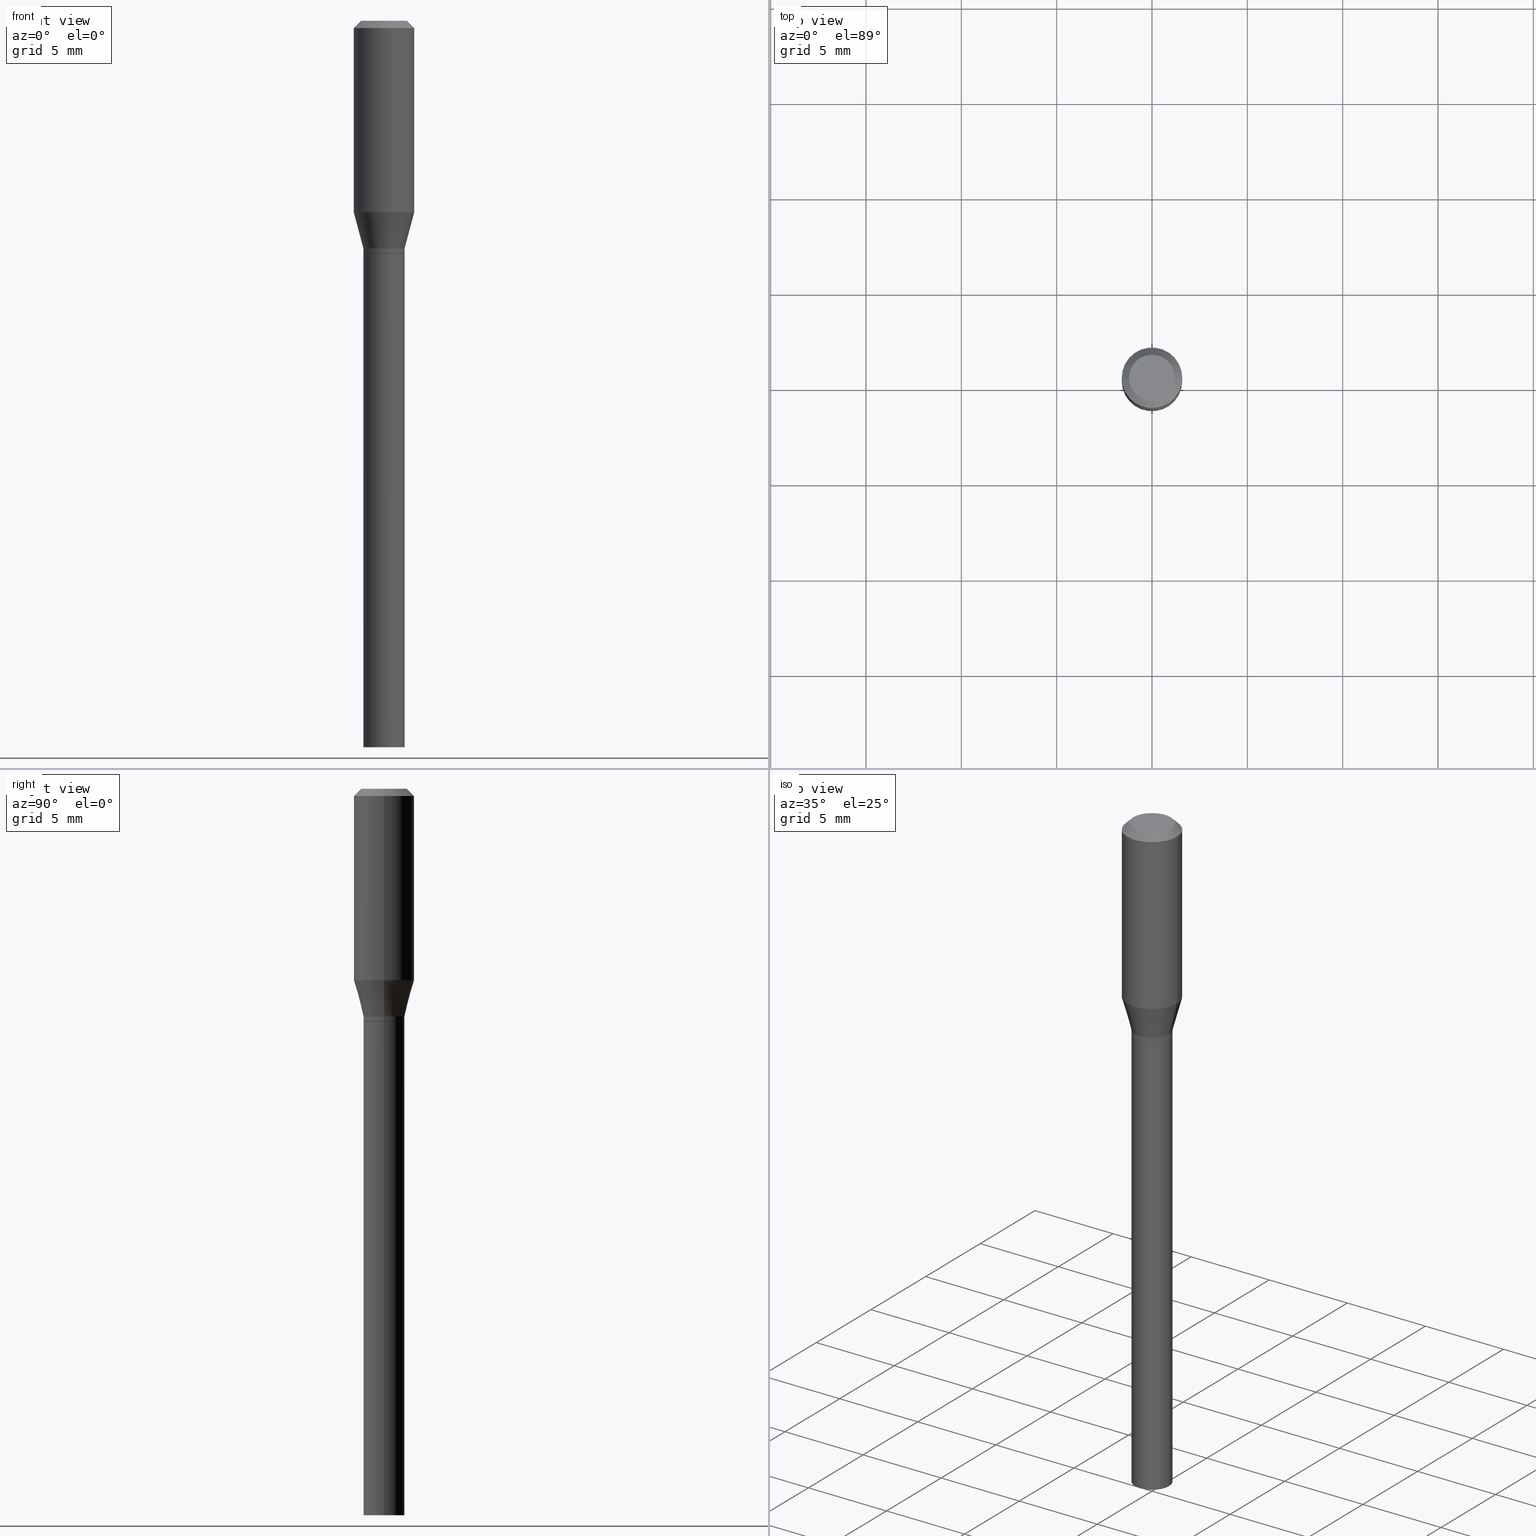
[diagram: canonical four-view strip — front | top / right | iso, engineering-drawing reading convention]
A machine part, canonical four-view strip (front | top / right | iso — engineering-drawing reading convention). The complete STEP part file that produces these views, byte-faithful:
ISO-10303-21;
HEADER;
FILE_DESCRIPTION (( 'STEP AP203' ),
    '1' );
FILE_NAME ('02712.STEP',
    '2024-03-18T21:35:12',
    ( '' ),
    ( '' ),
    'SwSTEP 2.0',
    'SolidWorks 2023',
    '' );
FILE_SCHEMA (( 'CONFIG_CONTROL_DESIGN' ));
ENDSEC;

DATA;
#1 = CONICAL_SURFACE ( 'NONE', #343, 0.04199999999999999567, 0.7853981633976103716 ) ;
#2 = DIRECTION ( 'NONE',  ( 1.000000000000000000, -6.982962677686265133E-15, 0.000000000000000000 ) ) ;
#3 = VERTEX_POINT ( 'NONE', #337 ) ;
#4 = DIRECTION ( 'NONE',  ( 1.000000000000000000, -6.982962677686269077E-15, 0.000000000000000000 ) ) ;
#5 = PRODUCT_RELATED_PRODUCT_CATEGORY ( 'detail', '', ( #98 ) ) ;
#6 = CARTESIAN_POINT ( 'NONE',  ( 0.000000000000000000, 0.000000000000000000, 0.000000000000000000 ) ) ;
#7 = EDGE_CURVE ( 'NONE', #368, #262, #136, .T. ) ;
#8 = CARTESIAN_POINT ( 'NONE',  ( 0.06250000000000000000, -4.888073874380388472E-16, -0.01499999999999999944 ) ) ;
#9 = EDGE_CURVE ( 'NONE', #330, #368, #223, .T. ) ;
#10 = VECTOR ( 'NONE', #112, 39.37007874015748854 ) ;
#11 = EDGE_LOOP ( 'NONE', ( #291, #358 ) ) ;
#12 = ORIENTED_EDGE ( 'NONE', *, *, #20, .F. ) ;
#13 = ORIENTED_EDGE ( 'NONE', *, *, #421, .F. ) ;
#14 = CONICAL_SURFACE ( 'NONE', #439, 0.04199999999999999567, 0.7853981633976103716 ) ;
#15 = DIRECTION ( 'NONE',  ( 1.000000000000000000, -6.982962677686265133E-15, 0.000000000000000000 ) ) ;
#16 = LOCAL_TIME ( 17, 35, 12.00000000000000000, #163 ) ;
#17 = PLANE ( 'NONE',  #351 ) ;
#18 = ADVANCED_FACE ( 'NONE', ( #445 ), #342, .T. ) ;
#19 = DIRECTION ( 'NONE',  ( 1.000000000000000000, -6.982962677686265922E-15, 4.876176775795935793E-29 ) ) ;
#20 = EDGE_CURVE ( 'NONE', #394, #330, #271, .T. ) ;
#21 = DATE_AND_TIME ( #167, #440 ) ;
#22 = FACE_OUTER_BOUND ( 'NONE', #48, .T. ) ;
#23 = AXIS2_PLACEMENT_3D ( 'NONE', #67, #463, #28 ) ;
#24 = COORDINATED_UNIVERSAL_TIME_OFFSET ( 5, 0, .BEHIND. ) ;
#25 = DIRECTION ( 'NONE',  ( -0.7071067811865452413, 2.468850131082233000E-15, -0.7071067811865497932 ) ) ;
#26 = DIRECTION ( 'NONE',  ( -2.445468806185136597E-29, 3.491481338843145583E-15, 1.000000000000000000 ) ) ;
#27 = APPROVAL_ROLE ( '' ) ;
#28 = DIRECTION ( 'NONE',  ( 1.000000000000000000, -6.982962677686267499E-15, 4.884662768193073002E-29 ) ) ;
#29 = ORIENTED_EDGE ( 'NONE', *, *, #307, .F. ) ;
#30 = AXIS2_PLACEMENT_3D ( 'NONE', #187, #377, #255 ) ;
#31 = APPROVAL_PERSON_ORGANIZATION ( #161, #378, #241 ) ;
#32 = DIRECTION ( 'NONE',  ( -2.445468806185136597E-29, 3.491481338843145583E-15, 1.000000000000000000 ) ) ;
#33 = ORIENTED_EDGE ( 'NONE', *, *, #385, .T. ) ;
#34 = EDGE_CURVE ( 'NONE', #182, #79, #88, .T. ) ;
#35 = DIRECTION ( 'NONE',  ( 1.000000000000000000, -6.982962677686267499E-15, 4.876176775795935793E-29 ) ) ;
#36 = ORIENTED_EDGE ( 'NONE', *, *, #7, .T. ) ;
#37 = CARTESIAN_POINT ( 'NONE',  ( 0.000000000000000000, 0.000000000000000000, 0.000000000000000000 ) ) ;
#38 = ORIENTED_EDGE ( 'NONE', *, *, #56, .T. ) ;
#39 = CIRCLE ( 'NONE', #86, 0.04250000000000005856 ) ;
#40 = CARTESIAN_POINT ( 'NONE',  ( -0.04249999999999999611, 3.019806626980425514E-16, -2.090547413358334859E-30 ) ) ;
#41 = ORIENTED_EDGE ( 'NONE', *, *, #336, .F. ) ;
#42 = DIRECTION ( 'NONE',  ( -2.445468806185136597E-29, 3.491481338843145583E-15, 1.000000000000000000 ) ) ;
#43 = CARTESIAN_POINT ( 'NONE',  ( 0.04249999999999999611, -2.967759138016663549E-16, 2.072375129713272502E-30 ) ) ;
#44 = DIRECTION ( 'NONE',  ( 1.000000000000000000, -6.982962677686276177E-15, 0.000000000000000000 ) ) ;
#45 = DIRECTION ( 'NONE',  ( -2.445468806185136597E-29, 3.491481338843145583E-15, 1.000000000000000000 ) ) ;
#46 = AXIS2_PLACEMENT_3D ( 'NONE', #148, #289, #212 ) ;
#47 = ORIENTED_EDGE ( 'NONE', *, *, #321, .T. ) ;
#48 = EDGE_LOOP ( 'NONE', ( #172, #41, #174, #69 ) ) ;
#49 = VERTEX_POINT ( 'NONE', #413 ) ;
#50 = APPROVAL ( #280, 'UNSPECIFIED' ) ;
#51 = AXIS2_PLACEMENT_3D ( 'NONE', #417, #306, #387 ) ;
#52 = AXIS2_PLACEMENT_3D ( 'NONE', #6, #186, #221 ) ;
#53 = CARTESIAN_POINT ( 'NONE',  ( -0.04199999999999999567, -1.374833866451356541E-15, -0.4799999999999999822 ) ) ;
#54 = EDGE_CURVE ( 'NONE', #140, #394, #87, .T. ) ;
#55 = DIRECTION ( 'NONE',  ( -2.445468806185136597E-29, 3.491481338843145583E-15, 1.000000000000000000 ) ) ;
#56 = EDGE_CURVE ( 'NONE', #407, #103, #412, .T. ) ;
#57 = DIRECTION ( 'NONE',  ( 1.000000000000000000, -6.982962677686267499E-15, 4.876176775795935793E-29 ) ) ;
#58 = APPROVAL_DATE_TIME ( #195, #50 ) ;
#59 = DIRECTION ( 'NONE',  ( -2.438088387897960049E-29, 3.491481338843145188E-15, 1.000000000000000000 ) ) ;
#60 = VECTOR ( 'NONE', #411, 39.37007874015748143 ) ;
#61 = CC_DESIGN_APPROVAL ( #349, ( #226 ) ) ;
#62 = EDGE_CURVE ( 'NONE', #394, #262, #370, .T. ) ;
#63 = CARTESIAN_POINT ( 'NONE',  ( -0.04249999999999994060, -1.137657435479813503E-15, -0.4700000000000000289 ) ) ;
#64 = DIMENSIONAL_EXPONENTS ( 1.000000000000000000, 0.000000000000000000, 0.000000000000000000, 0.000000000000000000, 0.000000000000000000, 0.000000000000000000, 0.000000000000000000 ) ;
#65 = DIRECTION ( 'NONE',  ( -2.445468806185136597E-29, 3.491481338843145583E-15, 1.000000000000000000 ) ) ;
#66 = ORIENTED_EDGE ( 'NONE', *, *, #379, .T. ) ;
#67 = CARTESIAN_POINT ( 'NONE',  ( -2.427605901612193195E-45, 3.465977845273231710E-31, 9.926955091278351202E-17 ) ) ;
#68 = APPLICATION_PROTOCOL_DEFINITION ( 'international standard', 'config_control_design', 1994, #339 ) ;
#69 = ORIENTED_EDGE ( 'NONE', *, *, #307, .T. ) ;
#70 = ADVANCED_BREP_SHAPE_REPRESENTATION ( '02712', ( #391, #386, #52 ), #264 ) ;
#71 = CONICAL_SURFACE ( 'NONE', #129, 0.04249999999999994060, 0.2617993877991499629 ) ;
#72 = CIRCLE ( 'NONE', #398, 0.06250000000000000000 ) ;
#73 = ADVANCED_FACE ( 'NONE', ( #184 ), #14, .T. ) ;
#74 = DIRECTION ( 'NONE',  ( 1.000000000000000000, -6.982962677686266711E-15, 0.000000000000000000 ) ) ;
#75 = ORIENTED_EDGE ( 'NONE', *, *, #373, .F. ) ;
#76 = DIRECTION ( 'NONE',  ( -2.445468806185136597E-29, 3.491481338843145583E-15, 1.000000000000000000 ) ) ;
#77 = ORIENTED_EDGE ( 'NONE', *, *, #91, .F. ) ;
#78 =( NAMED_UNIT ( * ) PLANE_ANGLE_UNIT ( ) SI_UNIT ( $, .RADIAN. ) );
#79 = VERTEX_POINT ( 'NONE', #8 ) ;
#80 = AXIS2_PLACEMENT_3D ( 'NONE', #126, #457, #97 ) ;
#81 = ORIENTED_EDGE ( 'NONE', *, *, #106, .F. ) ;
#82 = ORIENTED_EDGE ( 'NONE', *, *, #442, .F. ) ;
#83 = DIRECTION ( 'NONE',  ( -2.445468806185136877E-29, 3.491481338843145188E-15, 1.000000000000000000 ) ) ;
#84 = DIRECTION ( 'NONE',  ( -2.445468806185136597E-29, 3.491481338843145583E-15, 1.000000000000000000 ) ) ;
#85 = EDGE_CURVE ( 'NONE', #140, #176, #224, .T. ) ;
#86 = AXIS2_PLACEMENT_3D ( 'NONE', #355, #137, #363 ) ;
#87 = LINE ( 'NONE', #260, #216 ) ;
#88 = LINE ( 'NONE', #448, #157 ) ;
#89 = LINE ( 'NONE', #274, #263 ) ;
#90 = CC_DESIGN_PERSON_AND_ORGANIZATION_ASSIGNMENT ( #353, #312, ( #239 ) ) ;
#91 = EDGE_CURVE ( 'NONE', #182, #248, #281, .T. ) ;
#92 = COORDINATED_UNIVERSAL_TIME_OFFSET ( 5, 0, .BEHIND. ) ;
#93 = CIRCLE ( 'NONE', #418, 0.04199999999999999567 ) ;
#94 = DIRECTION ( 'NONE',  ( -2.438088387897960049E-29, 3.491481338843145188E-15, 1.000000000000000000 ) ) ;
#95 = DIRECTION ( 'NONE',  ( 1.000000000000000000, -6.982962677686269866E-15, 0.000000000000000000 ) ) ;
#96 = PERSON_AND_ORGANIZATION ( #317, #406 ) ;
#97 = DIRECTION ( 'NONE',  ( 1.000000000000000000, -6.982962677686267499E-15, 4.884662768193073002E-29 ) ) ;
#98 = PRODUCT ( '02712', '02712', '', ( #371 ) ) ;
#99 = FACE_OUTER_BOUND ( 'NONE', #178, .T. ) ;
#100 = AXIS2_PLACEMENT_3D ( 'NONE', #105, #65, #287 ) ;
#101 = PERSON_AND_ORGANIZATION_ROLE ( 'classification_officer' ) ;
#102 = LINE ( 'NONE', #175, #225 ) ;
#103 = VERTEX_POINT ( 'NONE', #276 ) ;
#104 = DESIGN_CONTEXT ( 'detailed design', #339, 'design' ) ;
#105 = CARTESIAN_POINT ( 'NONE',  ( 3.668203209277705088E-31, -5.237222008264718399E-17, -0.01499999999999999944 ) ) ;
#106 = EDGE_CURVE ( 'NONE', #243, #125, #451, .T. ) ;
#107 = EDGE_LOOP ( 'NONE', ( #38, #286, #403, #156 ) ) ;
#108 = CARTESIAN_POINT ( 'NONE',  ( 0.000000000000000000, 0.000000000000000000, 0.000000000000000000 ) ) ;
#109 = EDGE_LOOP ( 'NONE', ( #294, #427, #12, #436 ) ) ;
#110 = CLOSED_SHELL ( 'NONE', ( #278, #153, #185, #122 ) ) ;
#111 = CC_DESIGN_SECURITY_CLASSIFICATION ( #130, ( #239 ) ) ;
#112 = DIRECTION ( 'NONE',  ( 0.2588190451025212391, 1.565188264969622362E-15, 0.9659258262890679791 ) ) ;
#113 = ORIENTED_EDGE ( 'NONE', *, *, #9, .T. ) ;
#114 = CARTESIAN_POINT ( 'NONE',  ( 0.04249999999999999611, -2.967759138016663549E-16, 2.072375129713272502E-30 ) ) ;
#115 = ORIENTED_EDGE ( 'NONE', *, *, #188, .T. ) ;
#116 = ORIENTED_EDGE ( 'NONE', *, *, #62, .T. ) ;
#117 = AXIS2_PLACEMENT_3D ( 'NONE', #171, #319, #461 ) ;
#118 = DIRECTION ( 'NONE',  ( -0.7071067811866621478, 7.493145998870769101E-15, 0.7071067811864328867 ) ) ;
#119 = CARTESIAN_POINT ( 'NONE',  ( 1.173825026968865628E-29, -1.675911042644709888E-15, -0.4799999999999999822 ) ) ;
#120 = LENGTH_MEASURE_WITH_UNIT ( LENGTH_MEASURE( 0.02539999999999999897 ), #300 );
#121 = DIRECTION ( 'NONE',  ( 1.000000000000000000, -6.982962677686265922E-15, 0.000000000000000000 ) ) ;
#122 = ADVANCED_FACE ( 'NONE', ( #99 ), #236, .F. ) ;
#123 = CARTESIAN_POINT ( 'NONE',  ( 1.172602292565773247E-29, -1.674165301975288581E-15, -0.4795000000000000928 ) ) ;
#124 = CIRCLE ( 'NONE', #51, 0.04249999999999994060 ) ;
#125 = VERTEX_POINT ( 'NONE', #132 ) ;
#126 = CARTESIAN_POINT ( 'NONE',  ( -2.427605901612193195E-45, 3.465977845273231710E-31, 9.926955091278351202E-17 ) ) ;
#127 = DATE_AND_TIME ( #425, #388 ) ;
#128 = FACE_OUTER_BOUND ( 'NONE', #222, .T. ) ;
#129 = AXIS2_PLACEMENT_3D ( 'NONE', #354, #240, #131 ) ;
#130 = SECURITY_CLASSIFICATION ( '', '', #201 ) ;
#131 = DIRECTION ( 'NONE',  ( 1.000000000000000000, -6.982962677686269077E-15, 0.000000000000000000 ) ) ;
#132 = CARTESIAN_POINT ( 'NONE',  ( -0.06250000000000000000, -2.722911573169879398E-16, -0.01499999999999999944 ) ) ;
#133 = DATE_AND_TIME ( #198, #232 ) ;
#134 = FACE_OUTER_BOUND ( 'NONE', #11, .T. ) ;
#135 = PERSON_AND_ORGANIZATION_ROLE ( 'creator' ) ;
#136 = CIRCLE ( 'NONE', #367, 0.04249999999999994060 ) ;
#137 = DIRECTION ( 'NONE',  ( -2.445468806185136597E-29, 3.491481338843145583E-15, 1.000000000000000000 ) ) ;
#138 = AXIS2_PLACEMENT_3D ( 'NONE', #267, #315, #422 ) ;
#139 = VECTOR ( 'NONE', #83, 39.37007874015748143 ) ;
#140 = VERTEX_POINT ( 'NONE', #194 ) ;
#141 = EDGE_CURVE ( 'NONE', #49, #79, #382, .T. ) ;
#142 = FACE_OUTER_BOUND ( 'NONE', #245, .T. ) ;
#143 = ORIENTED_EDGE ( 'NONE', *, *, #106, .T. ) ;
#144 = FACE_OUTER_BOUND ( 'NONE', #155, .T. ) ;
#145 = ORIENTED_EDGE ( 'NONE', *, *, #54, .T. ) ;
#146 = FACE_OUTER_BOUND ( 'NONE', #253, .T. ) ;
#147 = ORIENTED_EDGE ( 'NONE', *, *, #257, .T. ) ;
#148 = CARTESIAN_POINT ( 'NONE',  ( 3.668203209277705088E-31, -5.237222008264718399E-17, -0.01499999999999999944 ) ) ;
#149 = ORIENTED_EDGE ( 'NONE', *, *, #34, .T. ) ;
#150 = ORIENTED_EDGE ( 'NONE', *, *, #465, .F. ) ;
#151 = DIRECTION ( 'NONE',  ( 0.7071067811865452413, -7.319954787623248157E-15, -0.7071067811865497932 ) ) ;
#152 = LINE ( 'NONE', #181, #352 ) ;
#153 = ADVANCED_FACE ( 'NONE', ( #134 ), #192, .F. ) ;
#154 = ORIENTED_EDGE ( 'NONE', *, *, #409, .F. ) ;
#155 = EDGE_LOOP ( 'NONE', ( #77, #149, #462, #400 ) ) ;
#156 = ORIENTED_EDGE ( 'NONE', *, *, #321, .F. ) ;
#157 = VECTOR ( 'NONE', #151, 39.37007874015748143 ) ;
#158 = CIRCLE ( 'NONE', #404, 0.04249999999999999611 ) ;
#159 = DIRECTION ( 'NONE',  ( 1.000000000000000000, -6.982962677686267499E-15, 4.876176775795935793E-29 ) ) ;
#160 = CARTESIAN_POINT ( 'NONE',  ( 0.04749999999999999362, -4.035134999187576651E-16, 9.926955091278610047E-17 ) ) ;
#161 = PERSON_AND_ORGANIZATION ( #317, #406 ) ;
#162 = DIRECTION ( 'NONE',  ( -2.445468806185136597E-29, 3.491481338843145583E-15, 1.000000000000000000 ) ) ;
#163 = COORDINATED_UNIVERSAL_TIME_OFFSET ( 5, 0, .BEHIND. ) ;
#164 = AXIS2_PLACEMENT_3D ( 'NONE', #423, #55, #159 ) ;
#165 = CARTESIAN_POINT ( 'NONE',  ( 3.316907271900976096E-16, 0.04749999999999999362, -1.162105881386576343E-16 ) ) ;
#166 = ADVANCED_FACE ( 'NONE', ( #128 ), #17, .F. ) ;
#167 = CALENDAR_DATE ( 2024, 18, 3 ) ;
#168 = CYLINDRICAL_SURFACE ( 'NONE', #164, 0.04249999999999999611 ) ;
#169 = COORDINATED_UNIVERSAL_TIME_OFFSET ( 5, 0, .BEHIND. ) ;
#170 = CYLINDRICAL_SURFACE ( 'NONE', #433, 0.04249999999999999611 ) ;
#171 = CARTESIAN_POINT ( 'NONE',  ( 9.668380622468593325E-30, -1.380388514251453836E-15, -0.3953589838486224473 ) ) ;
#172 = ORIENTED_EDGE ( 'NONE', *, *, #34, .F. ) ;
#173 = DIRECTION ( 'NONE',  ( 1.000000000000000000, -6.982962677686269866E-15, 0.000000000000000000 ) ) ;
#174 = ORIENTED_EDGE ( 'NONE', *, *, #219, .T. ) ;
#175 = CARTESIAN_POINT ( 'NONE',  ( -0.04249999999999994060, -1.339015566558236180E-15, -0.4700000000000000289 ) ) ;
#176 = VERTEX_POINT ( 'NONE', #53 ) ;
#177 = DIRECTION ( 'NONE',  ( 1.000000000000000000, -6.982962677686266711E-15, 4.876176775795935793E-29 ) ) ;
#178 = EDGE_LOOP ( 'NONE', ( #362, #375 ) ) ;
#179 = AXIS2_PLACEMENT_3D ( 'NONE', #302, #446, #228 ) ;
#180 = CONICAL_SURFACE ( 'NONE', #46, 0.06250000000000000000, 0.7853981633974450594 ) ;
#181 = CARTESIAN_POINT ( 'NONE',  ( -0.04199999999999999567, -1.377483093625467939E-15, -0.4799999999999999822 ) ) ;
#182 = VERTEX_POINT ( 'NONE', #160 ) ;
#183 = DIRECTION ( 'NONE',  ( 1.000000000000000000, -6.982962677686266711E-15, 0.000000000000000000 ) ) ;
#184 = FACE_OUTER_BOUND ( 'NONE', #109, .T. ) ;
#185 = ADVANCED_FACE ( 'NONE', ( #238 ), #234, .T. ) ;
#186 = DIRECTION ( 'NONE',  ( 0.000000000000000000, 0.000000000000000000, 1.000000000000000000 ) ) ;
#187 = CARTESIAN_POINT ( 'NONE',  ( 3.668203209277704895E-29, -5.237222008264718177E-15, -1.500000000000000222 ) ) ;
#188 = EDGE_CURVE ( 'NONE', #262, #368, #124, .T. ) ;
#189 = LOCAL_TIME ( 17, 35, 12.00000000000000000, #268 ) ;
#190 = DIRECTION ( 'NONE',  ( -2.445468806185136877E-29, 3.491481338843145188E-15, 1.000000000000000000 ) ) ;
#191 = VERTEX_POINT ( 'NONE', #452 ) ;
#192 = PLANE ( 'NONE',  #326 ) ;
#193 = CC_DESIGN_APPROVAL ( #50, ( #239 ) ) ;
#194 = CARTESIAN_POINT ( 'NONE',  ( 0.04199999999999999567, -1.969195475107533334E-15, -0.4799999999999999822 ) ) ;
#195 = DATE_AND_TIME ( #392, #16 ) ;
#196 = CC_DESIGN_PERSON_AND_ORGANIZATION_ASSIGNMENT ( #456, #101, ( #130 ) ) ;
#197 = DIRECTION ( 'NONE',  ( 1.000000000000000000, -6.982962677686265922E-15, 4.876176775795935793E-29 ) ) ;
#198 = CALENDAR_DATE ( 2024, 18, 3 ) ;
#199 = ADVANCED_FACE ( 'NONE', ( #340 ), #71, .T. ) ;
#200 = CARTESIAN_POINT ( 'NONE',  ( 1.173825026968865768E-29, -1.675911042644710085E-15, -0.4800000000000000933 ) ) ;
#201 = SECURITY_CLASSIFICATION_LEVEL ( 'unclassified' ) ;
#202 = AXIS2_PLACEMENT_3D ( 'NONE', #347, #162, #15 ) ;
#203 = CIRCLE ( 'NONE', #247, 0.06250000000000000000 ) ;
#204 = DIRECTION ( 'NONE',  ( -2.445468806185136877E-29, 3.491481338843145188E-15, 1.000000000000000000 ) ) ;
#205 = DIRECTION ( 'NONE',  ( -2.445468806185136597E-29, 3.491481338843145583E-15, 1.000000000000000000 ) ) ;
#206 = APPLICATION_CONTEXT ( 'configuration controlled 3d designs of mechanical parts and assemblies' ) ;
#207 = DATE_TIME_ROLE ( 'classification_date' ) ;
#208 = DIRECTION ( 'NONE',  ( -2.445468806185136597E-29, 3.491481338843145583E-15, 1.000000000000000000 ) ) ;
#209 = EDGE_LOOP ( 'NONE', ( #217, #215 ) ) ;
#210 = DIRECTION ( 'NONE',  ( -2.445468806185136597E-29, 3.491481338843145583E-15, 1.000000000000000000 ) ) ;
#211 = ORIENTED_EDGE ( 'NONE', *, *, #373, .T. ) ;
#212 = DIRECTION ( 'NONE',  ( -1.000000000000000000, 6.982962677686266711E-15, 0.000000000000000000 ) ) ;
#213 = ORIENTED_EDGE ( 'NONE', *, *, #309, .F. ) ;
#214 = LINE ( 'NONE', #393, #10 ) ;
#215 = ORIENTED_EDGE ( 'NONE', *, *, #257, .F. ) ;
#216 = VECTOR ( 'NONE', #227, 39.37007874015748143 ) ;
#217 = ORIENTED_EDGE ( 'NONE', *, *, #85, .F. ) ;
#218 = EDGE_CURVE ( 'NONE', #191, #3, #397, .T. ) ;
#219 = EDGE_CURVE ( 'NONE', #248, #125, #89, .T. ) ;
#220 = ADVANCED_FACE ( 'NONE', ( #269 ), #168, .T. ) ;
#221 = DIRECTION ( 'NONE',  ( 1.000000000000000000, 0.000000000000000000, 0.000000000000000000 ) ) ;
#222 = EDGE_LOOP ( 'NONE', ( #320, #364 ) ) ;
#223 = LINE ( 'NONE', #443, #447 ) ;
#224 = CIRCLE ( 'NONE', #374, 0.04199999999999999567 ) ;
#225 = VECTOR ( 'NONE', #434, 39.37007874015748854 ) ;
#226 = PRODUCT_DEFINITION ( 'UNKNOWN', '', #239, #104 ) ;
#227 = DIRECTION ( 'NONE',  ( 0.7071067811866621478, -2.468850131083457312E-15, 0.7071067811864328867 ) ) ;
#228 = DIRECTION ( 'NONE',  ( 1.000000000000000000, -6.982962677686269077E-15, 0.000000000000000000 ) ) ;
#229 = PLANE ( 'NONE',  #432 ) ;
#230 = CC_DESIGN_PERSON_AND_ORGANIZATION_ASSIGNMENT ( #233, #135, ( #239 ) ) ;
#231 = AXIS2_PLACEMENT_3D ( 'NONE', #123, #45, #121 ) ;
#232 = LOCAL_TIME ( 17, 35, 12.00000000000000000, #24 ) ;
#233 = PERSON_AND_ORGANIZATION ( #317, #406 ) ;
#234 = CYLINDRICAL_SURFACE ( 'NONE', #341, 0.04249999999999999611 ) ;
#235 = ADVANCED_FACE ( 'NONE', ( #450 ), #229, .F. ) ;
#236 = PLANE ( 'NONE',  #138 ) ;
#237 = PERSON_AND_ORGANIZATION ( #317, #406 ) ;
#238 = FACE_OUTER_BOUND ( 'NONE', #297, .T. ) ;
#239 = PRODUCT_DEFINITION_FORMATION_WITH_SPECIFIED_SOURCE ( 'ANY', '', #98, .NOT_KNOWN. ) ;
#240 = DIRECTION ( 'NONE',  ( -2.445468806185136597E-29, 3.491481338843145583E-15, 1.000000000000000000 ) ) ;
#241 = APPROVAL_ROLE ( '' ) ;
#242 = DIRECTION ( 'NONE',  ( 1.000000000000000000, -6.982962677686269866E-15, 0.000000000000000000 ) ) ;
#243 = VERTEX_POINT ( 'NONE', #420 ) ;
#244 = DIRECTION ( 'NONE',  ( 1.000000000000000000, -6.982962677686266711E-15, 4.876176775795935793E-29 ) ) ;
#245 = EDGE_LOOP ( 'NONE', ( #396, #143, #213, #284 ) ) ;
#246 = CARTESIAN_POINT ( 'NONE',  ( 0.04249999999999994060, -1.937772143057944692E-15, -0.4700000000000000289 ) ) ;
#247 = AXIS2_PLACEMENT_3D ( 'NONE', #328, #205, #74 ) ;
#248 = VERTEX_POINT ( 'NONE', #350 ) ;
#249 = ADVANCED_FACE ( 'NONE', ( #22 ), #424, .T. ) ;
#250 = CYLINDRICAL_SURFACE ( 'NONE', #290, 0.06250000000000000000 ) ;
#251 = ORIENTED_EDGE ( 'NONE', *, *, #62, .F. ) ;
#252 = CARTESIAN_POINT ( 'NONE',  ( 1.173825026968865768E-29, -1.675911042644710085E-15, -0.4800000000000000933 ) ) ;
#253 = EDGE_LOOP ( 'NONE', ( #338, #113, #325, #251 ) ) ;
#254 = VECTOR ( 'NONE', #204, 39.37007874015748143 ) ;
#255 = DIRECTION ( 'NONE',  ( 1.000000000000000000, -6.982962677686276177E-15, 0.000000000000000000 ) ) ;
#256 = AXIS2_PLACEMENT_3D ( 'NONE', #365, #316, #285 ) ;
#257 = EDGE_CURVE ( 'NONE', #176, #140, #93, .T. ) ;
#258 = CARTESIAN_POINT ( 'NONE',  ( 9.668380622468593325E-30, -1.380388514251453836E-15, -0.3953589838486224473 ) ) ;
#259 = DIRECTION ( 'NONE',  ( -2.445468806185136597E-29, 3.491481338843145583E-15, 1.000000000000000000 ) ) ;
#260 = CARTESIAN_POINT ( 'NONE',  ( 0.04199999999999999567, -1.969195475107533334E-15, -0.4799999999999999822 ) ) ;
#261 = CC_DESIGN_PERSON_AND_ORGANIZATION_ASSIGNMENT ( #96, #389, ( #226 ) ) ;
#262 = VERTEX_POINT ( 'NONE', #246 ) ;
#263 = VECTOR ( 'NONE', #25, 39.37007874015748143 ) ;
#264 =( GEOMETRIC_REPRESENTATION_CONTEXT ( 3 ) GLOBAL_UNCERTAINTY_ASSIGNED_CONTEXT ( ( #369 ) ) GLOBAL_UNIT_ASSIGNED_CONTEXT ( ( #444, #78, #410 ) ) REPRESENTATION_CONTEXT ( 'NONE', 'WORKASPACE' ) );
#265 = ORIENTED_EDGE ( 'NONE', *, *, #9, .F. ) ;
#266 = CC_DESIGN_DATE_AND_TIME_ASSIGNMENT ( #133, #207, ( #130 ) ) ;
#267 = CARTESIAN_POINT ( 'NONE',  ( 2.967759138016780399E-16, 0.04249999999999832384, -0.4800000000000002043 ) ) ;
#268 = COORDINATED_UNIVERSAL_TIME_OFFSET ( 5, 0, .BEHIND. ) ;
#269 = FACE_OUTER_BOUND ( 'NONE', #429, .T. ) ;
#270 = CC_DESIGN_PERSON_AND_ORGANIZATION_ASSIGNMENT ( #333, #405, ( #98 ) ) ;
#271 = CIRCLE ( 'NONE', #231, 0.04250000000000005856 ) ;
#272 = VECTOR ( 'NONE', #426, 39.37007874015748143 ) ;
#273 = ADVANCED_FACE ( 'NONE', ( #146 ), #292, .T. ) ;
#274 = CARTESIAN_POINT ( 'NONE',  ( -0.06250000000000000000, 3.840629472727444916E-16, -0.01499999999999999944 ) ) ;
#275 = SHAPE_DEFINITION_REPRESENTATION ( #327, #70 ) ;
#276 = CARTESIAN_POINT ( 'NONE',  ( -0.04249999999999999611, -3.154585862756671481E-15, -1.500000000000000222 ) ) ;
#277 = CALENDAR_DATE ( 2024, 18, 3 ) ;
#278 = ADVANCED_FACE ( 'NONE', ( #401 ), #170, .T. ) ;
#279 = CARTESIAN_POINT ( 'NONE',  ( 0.000000000000000000, 0.000000000000000000, 0.000000000000000000 ) ) ;
#280 = APPROVAL_STATUS ( 'not_yet_approved' ) ;
#281 = CIRCLE ( 'NONE', #80, 0.04749999999999999362 ) ;
#282 = CIRCLE ( 'NONE', #117, 0.06250000000000000000 ) ;
#283 = CARTESIAN_POINT ( 'NONE',  ( -0.04250000000000005856, -1.372184639277245734E-15, -0.4795000000000000928 ) ) ;
#284 = ORIENTED_EDGE ( 'NONE', *, *, #141, .F. ) ;
#285 = DIRECTION ( 'NONE',  ( 1.000000000000000000, -6.982962677686267499E-15, 4.876176775795935793E-29 ) ) ;
#286 = ORIENTED_EDGE ( 'NONE', *, *, #421, .T. ) ;
#287 = DIRECTION ( 'NONE',  ( 1.000000000000000000, -6.982962677686266711E-15, 0.000000000000000000 ) ) ;
#288 = ADVANCED_FACE ( 'NONE', ( #361 ), #250, .T. ) ;
#289 = DIRECTION ( 'NONE',  ( 2.445468806185136597E-29, -3.491481338843145583E-15, -1.000000000000000000 ) ) ;
#290 = AXIS2_PLACEMENT_3D ( 'NONE', #37, #26, #244 ) ;
#291 = ORIENTED_EDGE ( 'NONE', *, *, #56, .F. ) ;
#292 = CYLINDRICAL_SURFACE ( 'NONE', #256, 0.04249999999999999611 ) ;
#293 = ORIENTED_EDGE ( 'NONE', *, *, #344, .F. ) ;
#294 = ORIENTED_EDGE ( 'NONE', *, *, #85, .T. ) ;
#295 = CARTESIAN_POINT ( 'NONE',  ( 3.668203209277704895E-29, -5.237222008264718177E-15, -1.500000000000000222 ) ) ;
#296 = VECTOR ( 'NONE', #390, 39.37007874015748143 ) ;
#297 = EDGE_LOOP ( 'NONE', ( #13, #366, #47, #293 ) ) ;
#298 = CC_DESIGN_APPROVAL ( #378, ( #130 ) ) ;
#299 = ADVANCED_FACE ( 'NONE', ( #142 ), #399, .T. ) ;
#300 =( LENGTH_UNIT ( ) NAMED_UNIT ( * ) SI_UNIT ( $, .METRE. ) );
#301 = CARTESIAN_POINT ( 'NONE',  ( 1.149370338907014223E-29, -1.640996229256278436E-15, -0.4700000000000000289 ) ) ;
#302 = CARTESIAN_POINT ( 'NONE',  ( 1.149370338907014223E-29, -1.640996229256278436E-15, -0.4700000000000000289 ) ) ;
#303 = EDGE_LOOP ( 'NONE', ( #323, #36, #33, #150 ) ) ;
#304 = CLOSED_SHELL ( 'NONE', ( #273, #73, #359, #299, #199, #18, #288, #249, #166, #235, #331, #220 ) ) ;
#305 = AXIS2_PLACEMENT_3D ( 'NONE', #295, #42, #44 ) ;
#306 = DIRECTION ( 'NONE',  ( -2.445468806185136597E-29, 3.491481338843145583E-15, 1.000000000000000000 ) ) ;
#307 = EDGE_CURVE ( 'NONE', #125, #79, #203, .T. ) ;
#308 = CARTESIAN_POINT ( 'NONE',  ( 0.06250000000000000000, -4.364351673553916694E-16, 3.047610484872459871E-30 ) ) ;
#309 = EDGE_CURVE ( 'NONE', #79, #125, #318, .T. ) ;
#310 = DIRECTION ( 'NONE',  ( -2.445468806185136597E-29, 3.491481338843145583E-15, 1.000000000000000000 ) ) ;
#311 = CIRCLE ( 'NONE', #305, 0.04249999999999999611 ) ;
#312 = PERSON_AND_ORGANIZATION_ROLE ( 'design_supplier' ) ;
#313 = CARTESIAN_POINT ( 'NONE',  ( 3.668203209277705088E-31, -5.237222008264718399E-17, -0.01499999999999999944 ) ) ;
#314 = APPROVAL_STATUS ( 'not_yet_approved' ) ;
#315 = DIRECTION ( 'NONE',  ( 2.438088387897960049E-29, -3.491481338843145188E-15, -1.000000000000000000 ) ) ;
#316 = DIRECTION ( 'NONE',  ( -2.445468806185136597E-29, 3.491481338843145583E-15, 1.000000000000000000 ) ) ;
#317 = PERSON ( 'UNSPECIFIED', 'UNSPECIFIED', 'UNSPECIFIED', ('UNSPECIFIED'), ('UNSPECIFIED'), ('UNSPECIFIED') ) ;
#318 = CIRCLE ( 'NONE', #100, 0.06250000000000000000 ) ;
#319 = DIRECTION ( 'NONE',  ( -2.445468806185136597E-29, 3.491481338843145583E-15, 1.000000000000000000 ) ) ;
#320 = ORIENTED_EDGE ( 'NONE', *, *, #336, .T. ) ;
#321 = EDGE_CURVE ( 'NONE', #407, #191, #395, .T. ) ;
#322 = FACE_OUTER_BOUND ( 'NONE', #335, .T. ) ;
#323 = ORIENTED_EDGE ( 'NONE', *, *, #379, .F. ) ;
#324 = CARTESIAN_POINT ( 'NONE',  ( 0.04250000000000005856, -1.970941215776955626E-15, -0.4795000000000000928 ) ) ;
#325 = ORIENTED_EDGE ( 'NONE', *, *, #188, .F. ) ;
#326 = AXIS2_PLACEMENT_3D ( 'NONE', #345, #59, #197 ) ;
#327 = PRODUCT_DEFINITION_SHAPE ( 'NONE', 'NONE',  #226 ) ;
#328 = CARTESIAN_POINT ( 'NONE',  ( 3.668203209277705088E-31, -5.237222008264718399E-17, -0.01499999999999999944 ) ) ;
#329 = AXIS2_PLACEMENT_3D ( 'NONE', #313, #455, #464 ) ;
#330 = VERTEX_POINT ( 'NONE', #283 ) ;
#331 = ADVANCED_FACE ( 'NONE', ( #322 ), #1, .T. ) ;
#332 = ORIENTED_EDGE ( 'NONE', *, *, #7, .F. ) ;
#333 = PERSON_AND_ORGANIZATION ( #317, #406 ) ;
#334 = DIRECTION ( 'NONE',  ( 1.000000000000000000, -6.982962677686269866E-15, 0.000000000000000000 ) ) ;
#335 = EDGE_LOOP ( 'NONE', ( #82, #147, #145, #75 ) ) ;
#336 = EDGE_CURVE ( 'NONE', #248, #182, #460, .T. ) ;
#337 = CARTESIAN_POINT ( 'NONE',  ( -0.04249999999999999611, -3.154585862756671481E-15, -0.4800000000000000933 ) ) ;
#338 = ORIENTED_EDGE ( 'NONE', *, *, #20, .T. ) ;
#339 = APPLICATION_CONTEXT ( 'configuration controlled 3d designs of mechanical parts and assemblies' ) ;
#340 = FACE_OUTER_BOUND ( 'NONE', #408, .T. ) ;
#341 = AXIS2_PLACEMENT_3D ( 'NONE', #279, #310, #57 ) ;
#342 = CONICAL_SURFACE ( 'NONE', #179, 0.04249999999999994060, 0.2617993877991499629 ) ;
#343 = AXIS2_PLACEMENT_3D ( 'NONE', #459, #32, #242 ) ;
#344 = EDGE_CURVE ( 'NONE', #3, #191, #158, .T. ) ;
#345 = CARTESIAN_POINT ( 'NONE',  ( 3.576687321579069994E-29, -5.368277968210015545E-15, -1.500000000000000222 ) ) ;
#346 = APPROVAL_DATE_TIME ( #458, #378 ) ;
#347 = CARTESIAN_POINT ( 'NONE',  ( 1.173825026968865768E-29, -1.675911042644710085E-15, -0.4800000000000000933 ) ) ;
#348 = APPROVAL_DATE_TIME ( #21, #349 ) ;
#349 = APPROVAL ( #314, 'UNSPECIFIED' ) ;
#350 = CARTESIAN_POINT ( 'NONE',  ( -0.04749999999999999362, 3.578768372314212971E-16, 9.926955091278110846E-17 ) ) ;
#351 = AXIS2_PLACEMENT_3D ( 'NONE', #165, #415, #383 ) ;
#352 = VECTOR ( 'NONE', #118, 39.37007874015748143 ) ;
#353 = PERSON_AND_ORGANIZATION ( #317, #406 ) ;
#354 = CARTESIAN_POINT ( 'NONE',  ( 1.149370338907014223E-29, -1.640996229256278436E-15, -0.4700000000000000289 ) ) ;
#355 = CARTESIAN_POINT ( 'NONE',  ( 1.172602292565773247E-29, -1.674165301975288581E-15, -0.4795000000000000928 ) ) ;
#356 = APPROVAL_ROLE ( '' ) ;
#357 = CARTESIAN_POINT ( 'NONE',  ( 0.04249999999999999611, -5.533997922066385616E-15, -1.500000000000000222 ) ) ;
#358 = ORIENTED_EDGE ( 'NONE', *, *, #453, .F. ) ;
#359 = ADVANCED_FACE ( 'NONE', ( #144 ), #180, .T. ) ;
#360 = AXIS2_PLACEMENT_3D ( 'NONE', #428, #76, #177 ) ;
#361 = FACE_OUTER_BOUND ( 'NONE', #466, .T. ) ;
#362 = ORIENTED_EDGE ( 'NONE', *, *, #218, .T. ) ;
#363 = DIRECTION ( 'NONE',  ( 1.000000000000000000, -6.982962677686265922E-15, 0.000000000000000000 ) ) ;
#364 = ORIENTED_EDGE ( 'NONE', *, *, #91, .T. ) ;
#365 = CARTESIAN_POINT ( 'NONE',  ( 0.000000000000000000, 0.000000000000000000, 0.000000000000000000 ) ) ;
#366 = ORIENTED_EDGE ( 'NONE', *, *, #453, .T. ) ;
#367 = AXIS2_PLACEMENT_3D ( 'NONE', #301, #372, #4 ) ;
#368 = VERTEX_POINT ( 'NONE', #63 ) ;
#369 = UNCERTAINTY_MEASURE_WITH_UNIT (LENGTH_MEASURE( 1.000000000000000082E-05 ), #444, 'distance_accuracy_value', 'NONE');
#370 = LINE ( 'NONE', #43, #60 ) ;
#371 = MECHANICAL_CONTEXT ( 'NONE', #206, 'mechanical' ) ;
#372 = DIRECTION ( 'NONE',  ( -2.445468806185136597E-29, 3.491481338843145583E-15, 1.000000000000000000 ) ) ;
#373 = EDGE_CURVE ( 'NONE', #330, #394, #39, .T. ) ;
#374 = AXIS2_PLACEMENT_3D ( 'NONE', #119, #259, #95 ) ;
#375 = ORIENTED_EDGE ( 'NONE', *, *, #344, .T. ) ;
#376 = CARTESIAN_POINT ( 'NONE',  ( 1.173825026968865628E-29, -1.675911042644709888E-15, -0.4799999999999999822 ) ) ;
#377 = DIRECTION ( 'NONE',  ( -2.445468806185136597E-29, 3.491481338843145583E-15, 1.000000000000000000 ) ) ;
#378 = APPROVAL ( #454, 'UNSPECIFIED' ) ;
#379 = EDGE_CURVE ( 'NONE', #368, #243, #102, .T. ) ;
#380 = CARTESIAN_POINT ( 'NONE',  ( -0.06250000000000000000, 4.440892098500626162E-16, -3.074334431409316114E-30 ) ) ;
#381 = APPROVAL_PERSON_ORGANIZATION ( #384, #349, #356 ) ;
#382 = LINE ( 'NONE', #308, #254 ) ;
#383 = DIRECTION ( 'NONE',  ( -1.000000000000000000, 6.982962677686265922E-15, -4.876176775795935793E-29 ) ) ;
#384 = PERSON_AND_ORGANIZATION ( #317, #406 ) ;
#385 = EDGE_CURVE ( 'NONE', #262, #49, #214, .T. ) ;
#386 = MANIFOLD_SOLID_BREP ( 'Body-Move/Copy2[2]', #304 ) ;
#387 = DIRECTION ( 'NONE',  ( 1.000000000000000000, -6.982962677686269077E-15, 0.000000000000000000 ) ) ;
#388 = LOCAL_TIME ( 17, 35, 12.00000000000000000, #169 ) ;
#389 = PERSON_AND_ORGANIZATION_ROLE ( 'creator' ) ;
#390 = DIRECTION ( 'NONE',  ( -2.445468806185136877E-29, 3.491481338843145188E-15, 1.000000000000000000 ) ) ;
#391 = MANIFOLD_SOLID_BREP ( 'Body-Move/Copy2[1]', #110 ) ;
#392 = CALENDAR_DATE ( 2024, 18, 3 ) ;
#393 = CARTESIAN_POINT ( 'NONE',  ( 0.04249999999999994060, -1.937772143057944692E-15, -0.4700000000000000289 ) ) ;
#394 = VERTEX_POINT ( 'NONE', #324 ) ;
#395 = LINE ( 'NONE', #114, #272 ) ;
#396 = ORIENTED_EDGE ( 'NONE', *, *, #409, .T. ) ;
#397 = CIRCLE ( 'NONE', #202, 0.04249999999999999611 ) ;
#398 = AXIS2_PLACEMENT_3D ( 'NONE', #258, #402, #183 ) ;
#399 = CYLINDRICAL_SURFACE ( 'NONE', #360, 0.06250000000000000000 ) ;
#400 = ORIENTED_EDGE ( 'NONE', *, *, #219, .F. ) ;
#401 = FACE_OUTER_BOUND ( 'NONE', #107, .T. ) ;
#402 = DIRECTION ( 'NONE',  ( -2.445468806185136597E-29, 3.491481338843145583E-15, 1.000000000000000000 ) ) ;
#403 = ORIENTED_EDGE ( 'NONE', *, *, #218, .F. ) ;
#404 = AXIS2_PLACEMENT_3D ( 'NONE', #252, #210, #2 ) ;
#405 = PERSON_AND_ORGANIZATION_ROLE ( 'design_owner' ) ;
#406 = ORGANIZATION ( 'UNSPECIFIED', 'UNSPECIFIED', '' ) ;
#407 = VERTEX_POINT ( 'NONE', #357 ) ;
#408 = EDGE_LOOP ( 'NONE', ( #115, #66, #154, #431 ) ) ;
#409 = EDGE_CURVE ( 'NONE', #49, #243, #282, .T. ) ;
#410 =( NAMED_UNIT ( * ) SI_UNIT ( $, .STERADIAN. ) SOLID_ANGLE_UNIT ( ) );
#411 = DIRECTION ( 'NONE',  ( -2.445468806185136877E-29, 3.491481338843145188E-15, 1.000000000000000000 ) ) ;
#412 = CIRCLE ( 'NONE', #30, 0.04249999999999999611 ) ;
#413 = CARTESIAN_POINT ( 'NONE',  ( 0.06250000000000000000, -1.816823681606845702E-15, -0.3953589838486224473 ) ) ;
#414 = ORIENTED_EDGE ( 'NONE', *, *, #141, .T. ) ;
#415 = DIRECTION ( 'NONE',  ( 2.438088387897960049E-29, -3.491481338843145188E-15, -1.000000000000000000 ) ) ;
#416 = DATE_TIME_ROLE ( 'creation_date' ) ;
#417 = CARTESIAN_POINT ( 'NONE',  ( 1.149370338907014223E-29, -1.640996229256278436E-15, -0.4700000000000000289 ) ) ;
#418 = AXIS2_PLACEMENT_3D ( 'NONE', #435, #430, #173 ) ;
#419 = CC_DESIGN_DATE_AND_TIME_ASSIGNMENT ( #127, #416, ( #226 ) ) ;
#420 = CARTESIAN_POINT ( 'NONE',  ( -0.06250000000000000000, -9.362993044013910222E-16, -0.3953589838486224473 ) ) ;
#421 = EDGE_CURVE ( 'NONE', #103, #3, #441, .T. ) ;
#422 = DIRECTION ( 'NONE',  ( -1.000000000000000000, 6.982962677686265922E-15, -4.876176775795935793E-29 ) ) ;
#423 = CARTESIAN_POINT ( 'NONE',  ( 0.000000000000000000, 0.000000000000000000, 0.000000000000000000 ) ) ;
#424 = CONICAL_SURFACE ( 'NONE', #329, 0.06250000000000000000, 0.7853981633974450594 ) ;
#425 = CALENDAR_DATE ( 2024, 18, 3 ) ;
#426 = DIRECTION ( 'NONE',  ( -2.445468806185136877E-29, 3.491481338843145188E-15, 1.000000000000000000 ) ) ;
#427 = ORIENTED_EDGE ( 'NONE', *, *, #442, .T. ) ;
#428 = CARTESIAN_POINT ( 'NONE',  ( 0.000000000000000000, 0.000000000000000000, 0.000000000000000000 ) ) ;
#429 = EDGE_LOOP ( 'NONE', ( #265, #211, #116, #332 ) ) ;
#430 = DIRECTION ( 'NONE',  ( -2.445468806185136597E-29, 3.491481338843145583E-15, 1.000000000000000000 ) ) ;
#431 = ORIENTED_EDGE ( 'NONE', *, *, #385, .F. ) ;
#432 = AXIS2_PLACEMENT_3D ( 'NONE', #200, #94, #19 ) ;
#433 = AXIS2_PLACEMENT_3D ( 'NONE', #108, #208, #35 ) ;
#434 = DIRECTION ( 'NONE',  ( -0.2588190451025212391, 5.211531920934549464E-15, 0.9659258262890679791 ) ) ;
#435 = CARTESIAN_POINT ( 'NONE',  ( 1.173825026968865628E-29, -1.675911042644709888E-15, -0.4799999999999999822 ) ) ;
#436 = ORIENTED_EDGE ( 'NONE', *, *, #54, .F. ) ;
#437 = APPLICATION_PROTOCOL_DEFINITION ( 'international standard', 'config_control_design', 1994, #206 ) ;
#438 = ORIENTED_EDGE ( 'NONE', *, *, #465, .T. ) ;
#439 = AXIS2_PLACEMENT_3D ( 'NONE', #376, #84, #334 ) ;
#440 = LOCAL_TIME ( 17, 35, 12.00000000000000000, #92 ) ;
#441 = LINE ( 'NONE', #40, #139 ) ;
#442 = EDGE_CURVE ( 'NONE', #176, #330, #152, .T. ) ;
#443 = CARTESIAN_POINT ( 'NONE',  ( -0.04249999999999999611, 3.019806626980425514E-16, -2.090547413358334859E-30 ) ) ;
#444 =( CONVERSION_BASED_UNIT ( 'INCH', #120 ) LENGTH_UNIT ( ) NAMED_UNIT ( #64 ) );
#445 = FACE_OUTER_BOUND ( 'NONE', #303, .T. ) ;
#446 = DIRECTION ( 'NONE',  ( -2.445468806185136597E-29, 3.491481338843145583E-15, 1.000000000000000000 ) ) ;
#447 = VECTOR ( 'NONE', #190, 39.37007874015748143 ) ;
#448 = CARTESIAN_POINT ( 'NONE',  ( 0.06250000000000000000, -4.811533449433679005E-16, -0.01499999999999999944 ) ) ;
#449 = APPROVAL_PERSON_ORGANIZATION ( #237, #50, #27 ) ;
#450 = FACE_OUTER_BOUND ( 'NONE', #209, .T. ) ;
#451 = LINE ( 'NONE', #380, #296 ) ;
#452 = CARTESIAN_POINT ( 'NONE',  ( 0.04249999999999999611, -1.972686956446376341E-15, -0.4800000000000000933 ) ) ;
#453 = EDGE_CURVE ( 'NONE', #103, #407, #311, .T. ) ;
#454 = APPROVAL_STATUS ( 'not_yet_approved' ) ;
#455 = DIRECTION ( 'NONE',  ( 2.445468806185136597E-29, -3.491481338843145583E-15, -1.000000000000000000 ) ) ;
#456 = PERSON_AND_ORGANIZATION ( #317, #406 ) ;
#457 = DIRECTION ( 'NONE',  ( -2.445468806185136597E-29, 3.491481338843145583E-15, 1.000000000000000000 ) ) ;
#458 = DATE_AND_TIME ( #277, #189 ) ;
#459 = CARTESIAN_POINT ( 'NONE',  ( 1.173825026968865628E-29, -1.675911042644709888E-15, -0.4799999999999999822 ) ) ;
#460 = CIRCLE ( 'NONE', #23, 0.04749999999999999362 ) ;
#461 = DIRECTION ( 'NONE',  ( 1.000000000000000000, -6.982962677686266711E-15, 0.000000000000000000 ) ) ;
#462 = ORIENTED_EDGE ( 'NONE', *, *, #309, .T. ) ;
#463 = DIRECTION ( 'NONE',  ( -2.445468806185136597E-29, 3.491481338843145583E-15, 1.000000000000000000 ) ) ;
#464 = DIRECTION ( 'NONE',  ( -1.000000000000000000, 6.982962677686266711E-15, 0.000000000000000000 ) ) ;
#465 = EDGE_CURVE ( 'NONE', #243, #49, #72, .T. ) ;
#466 = EDGE_LOOP ( 'NONE', ( #81, #438, #414, #29 ) ) ;
ENDSEC;
END-ISO-10303-21;
